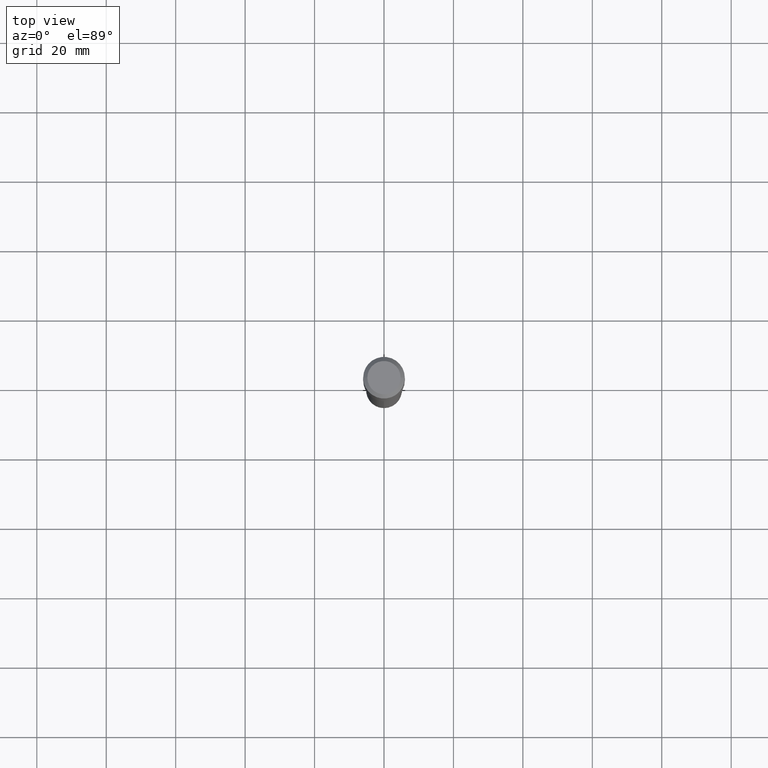
[diagram: clean part render]
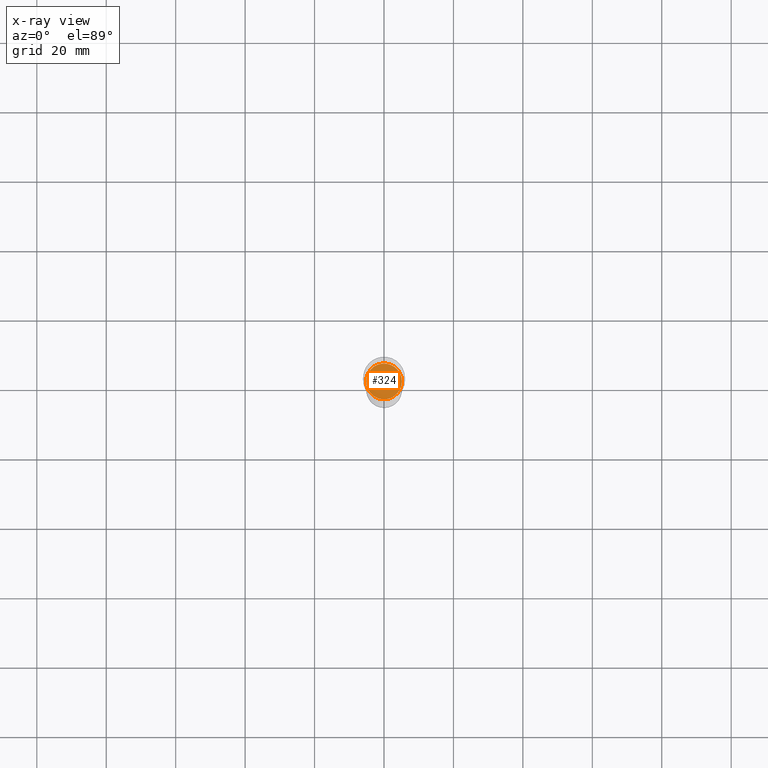
[diagram: x-ray — body ghosted, one internal face saturated and labeled with its STEP entity id]
A machine part, top view, then the same camera in x-ray: the body is ghosted and one INTERNAL B-rep face — a face not visible from any outside direction — is saturated and labeled: STEP entity #324.
In plain terms, the highlighted planar face has unit normal (-0, 0, 1).
Its self-contained STEP definition (entity closure, byte-faithful):
#7 = PLANE ( 'NONE',  #85 ) ;
#15 = EDGE_CURVE ( 'NONE', #116, #111, #68, .T. ) ;
#41 = DIRECTION ( 'NONE',  ( 1.000000000000000000, -6.982962677686261189E-15, 0.000000000000000000 ) ) ;
#68 = CIRCLE ( 'NONE', #440, 0.2026000000000000023 ) ;
#77 = CIRCLE ( 'NONE', #118, 0.2026000000000000023 ) ;
#85 = AXIS2_PLACEMENT_3D ( 'NONE', #187, #335, #148 ) ;
#111 = VERTEX_POINT ( 'NONE', #186 ) ;
#116 = VERTEX_POINT ( 'NONE', #248 ) ;
#118 = AXIS2_PLACEMENT_3D ( 'NONE', #182, #365, #41 ) ;
#148 = DIRECTION ( 'NONE',  ( 1.000000000000000000, -6.982962677686265922E-15, 4.876176775795935793E-29 ) ) ;
#173 = DIRECTION ( 'NONE',  ( 1.000000000000000000, -6.982962677686261189E-15, 0.000000000000000000 ) ) ;
#174 = ORIENTED_EDGE ( 'NONE', *, *, #15, .F. ) ;
#182 = CARTESIAN_POINT ( 'NONE',  ( 6.111960187298512242E-29, -8.726259310170675626E-15, -2.499300000000000299 ) ) ;
#186 = CARTESIAN_POINT ( 'NONE',  ( -0.2026000000000000023, -7.284050500346599855E-15, -2.499300000000000299 ) ) ;
#187 = CARTESIAN_POINT ( 'NONE',  ( 6.111960187298512242E-29, -8.726259310170675626E-15, -2.499300000000000299 ) ) ;
#248 = CARTESIAN_POINT ( 'NONE',  ( 0.2026000000000000023, -1.014100754866991103E-14, -2.499300000000000299 ) ) ;
#324 = ADVANCED_FACE ( 'NONE', ( #330 ), #7, .F. ) ;
#330 = FACE_OUTER_BOUND ( 'NONE', #394, .T. ) ;
#335 = DIRECTION ( 'NONE',  ( -2.438088387897960049E-29, 3.491481338843145188E-15, 1.000000000000000000 ) ) ;
#365 = DIRECTION ( 'NONE',  ( -2.445468806185136597E-29, 3.491481338843145583E-15, 1.000000000000000000 ) ) ;
#389 = EDGE_CURVE ( 'NONE', #111, #116, #77, .T. ) ;
#394 = EDGE_LOOP ( 'NONE', ( #174, #407 ) ) ;
#399 = CARTESIAN_POINT ( 'NONE',  ( 6.111960187298512242E-29, -8.726259310170675626E-15, -2.499300000000000299 ) ) ;
#407 = ORIENTED_EDGE ( 'NONE', *, *, #389, .F. ) ;
#440 = AXIS2_PLACEMENT_3D ( 'NONE', #399, #480, #173 ) ;
#480 = DIRECTION ( 'NONE',  ( -2.445468806185136597E-29, 3.491481338843145583E-15, 1.000000000000000000 ) ) ;